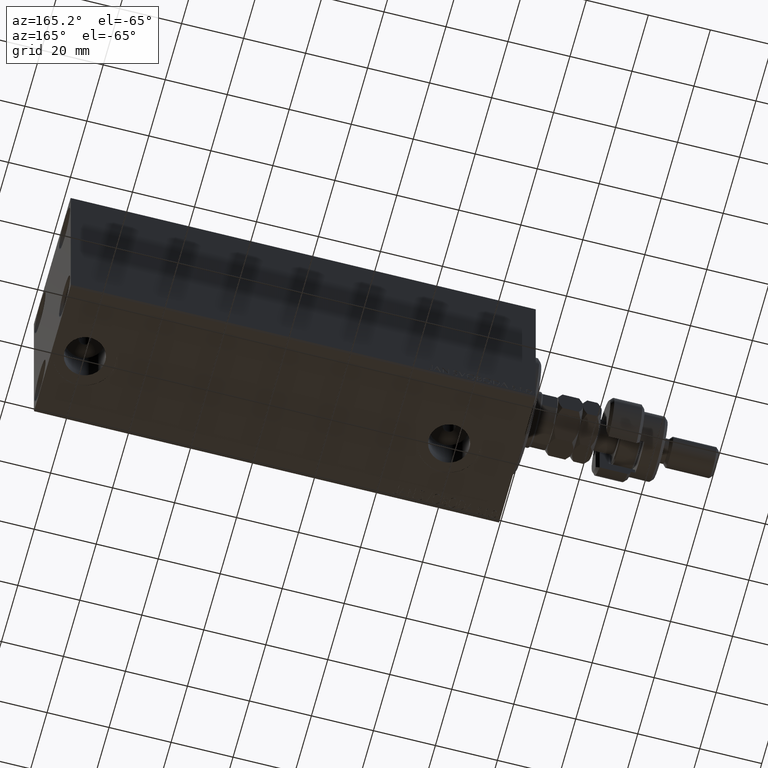
[diagram: clean part render]
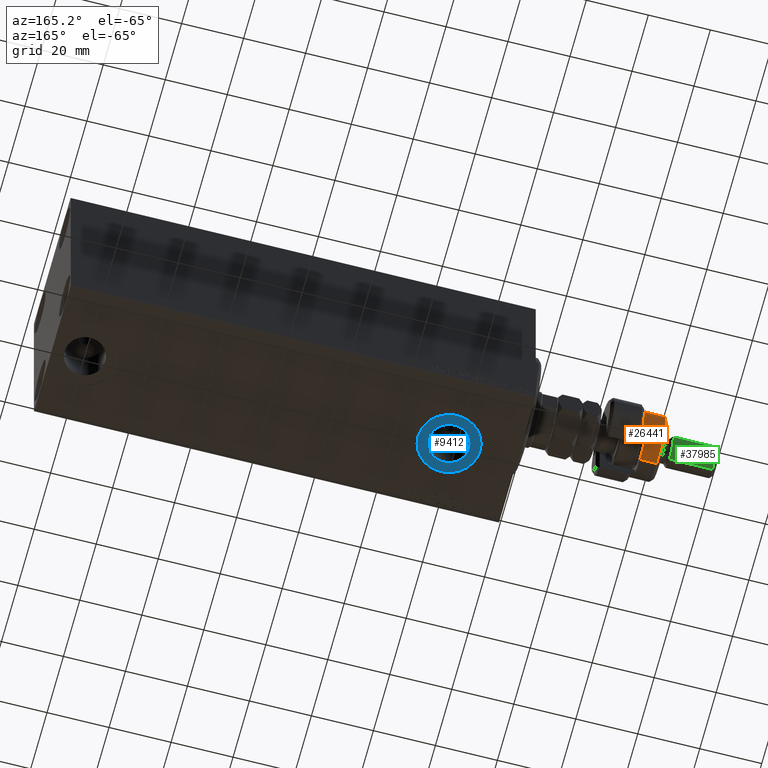
[diagram: same view with three faces highlighted in distinct colors, each labeled with its STEP entity id]
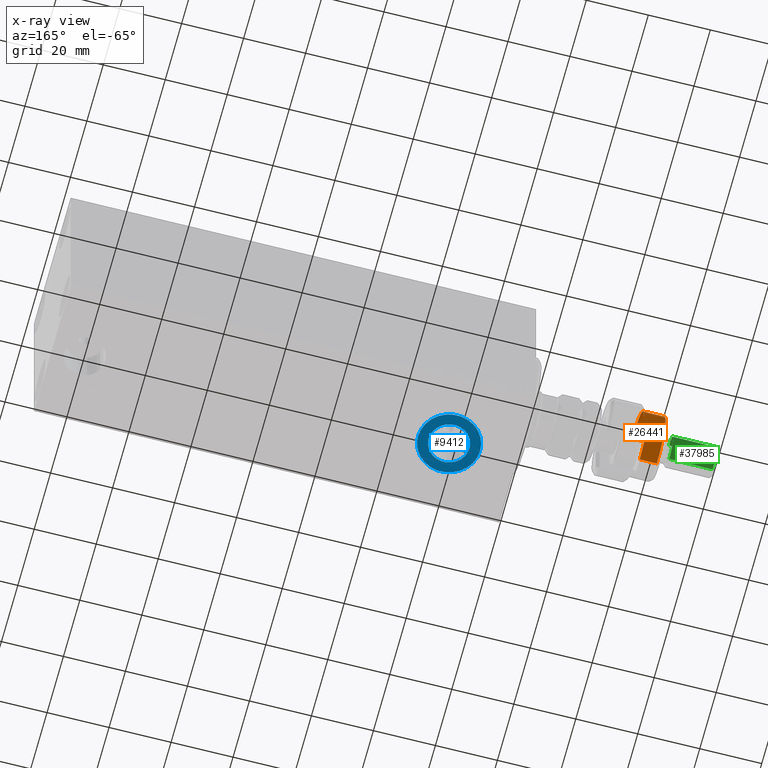
[diagram: x-ray of the same camera — body ghosted, the three highlighted faces saturated]
A machine part, auxiliary view with three faces highlighted in distinct colors.
The next image is the same camera in x-ray (body ghosted, the three faces saturated) — at least one of them is partly hidden behind the body in this view.
Their STEP definitions:

[orange] entity #26441 — the highlighted cylindrical surface (edge-blend (fillet) strip) has radius 10.5 mm, axis along (1, -0, -0).
#3172 = ORIENTED_EDGE ( 'NONE', *, *, #45183, .T. ) ;
#4069 = CYLINDRICAL_SURFACE ( 'NONE', #19640, 10.50000000000000000 ) ;
#4309 = DIRECTION ( 'NONE',  ( -1.000000000000000000, 0.000000000000000000, 0.000000000000000000 ) ) ;
#5009 = ORIENTED_EDGE ( 'NONE', *, *, #42270, .T. ) ;
#5487 = AXIS2_PLACEMENT_3D ( 'NONE', #9822, #38694, #22335 ) ;
#5669 = VERTEX_POINT ( 'NONE', #13661 ) ;
#6095 = CARTESIAN_POINT ( 'NONE',  ( 0.000000000000000000, 0.000000000000000000, 17.99999999999999645 ) ) ;
#6894 = VERTEX_POINT ( 'NONE', #42669 ) ;
#7407 = AXIS2_PLACEMENT_3D ( 'NONE', #23482, #16383, #19455 ) ;
#9822 = CARTESIAN_POINT ( 'NONE',  ( 0.000000000000000000, 0.000000000000000000, 11.00000000000000000 ) ) ;
#10167 = CARTESIAN_POINT ( 'NONE',  ( -10.50000000000000000, 0.000000000000000000, 17.99999999999999645 ) ) ;
#10226 = VERTEX_POINT ( 'NONE', #25324 ) ;
#13661 = CARTESIAN_POINT ( 'NONE',  ( -10.50000000000000000, 0.000000000000000000, 12.50000000000000000 ) ) ;
#14939 = LINE ( 'NONE', #22507, #30702 ) ;
#15634 = ORIENTED_EDGE ( 'NONE', *, *, #17913, .T. ) ;
#16383 = DIRECTION ( 'NONE',  ( 0.000000000000000000, 0.000000000000000000, -1.000000000000000000 ) ) ;
#16784 = VERTEX_POINT ( 'NONE', #41274 ) ;
#17124 = VERTEX_POINT ( 'NONE', #10167 ) ;
#17913 = EDGE_CURVE ( 'NONE', #24970, #16784, #14939, .T. ) ;
#17938 = ORIENTED_EDGE ( 'NONE', *, *, #43758, .T. ) ;
#18133 = CARTESIAN_POINT ( 'NONE',  ( -8.944271909999159220, 5.500000000000000000, 19.00000000000000000 ) ) ;
#18245 = CIRCLE ( 'NONE', #25813, 10.50000000000000000 ) ;
#18374 = DIRECTION ( 'NONE',  ( 0.000000000000000000, 0.000000000000000000, 1.000000000000000000 ) ) ;
#18954 = DIRECTION ( 'NONE',  ( -0.000000000000000000, -0.000000000000000000, -1.000000000000000000 ) ) ;
#19455 = DIRECTION ( 'NONE',  ( -1.000000000000000000, 0.000000000000000000, 0.000000000000000000 ) ) ;
#19640 = AXIS2_PLACEMENT_3D ( 'NONE', #36717, #32699, #4309 ) ;
#20404 = EDGE_LOOP ( 'NONE', ( #17938, #15634, #3172, #5009, #32613, #44353 ) ) ;
#20970 = CIRCLE ( 'NONE', #7407, 10.50000000000000000 ) ;
#22335 = DIRECTION ( 'NONE',  ( 1.000000000000000000, 0.000000000000000000, 0.000000000000000000 ) ) ;
#22507 = CARTESIAN_POINT ( 'NONE',  ( 10.50000000000000000, 1.285879139104720831E-15, 19.00000000000000000 ) ) ;
#22749 = EDGE_CURVE ( 'NONE', #5669, #10226, #20970, .T. ) ;
#23482 = CARTESIAN_POINT ( 'NONE',  ( 0.000000000000000000, 0.000000000000000000, 12.50000000000000000 ) ) ;
#24221 = VECTOR ( 'NONE', #18374, 1000.000000000000000 ) ;
#24890 = LINE ( 'NONE', #31146, #43844 ) ;
#24970 = VERTEX_POINT ( 'NONE', #39391 ) ;
#25324 = CARTESIAN_POINT ( 'NONE',  ( -8.944271909999159220, 5.500000000000000000, 12.50000000000000000 ) ) ;
#25813 = AXIS2_PLACEMENT_3D ( 'NONE', #6095, #44708, #38060 ) ;
#26441 = ADVANCED_FACE ( 'NONE', ( #39817 ), #4069, .T. ) ;
#30414 = CIRCLE ( 'NONE', #5487, 10.50000000000000000 ) ;
#30702 = VECTOR ( 'NONE', #18954, 1000.000000000000000 ) ;
#31146 = CARTESIAN_POINT ( 'NONE',  ( -10.50000000000000000, 0.000000000000000000, 19.00000000000000000 ) ) ;
#32469 = DIRECTION ( 'NONE',  ( -0.000000000000000000, -0.000000000000000000, -1.000000000000000000 ) ) ;
#32613 = ORIENTED_EDGE ( 'NONE', *, *, #22749, .F. ) ;
#32699 = DIRECTION ( 'NONE',  ( -0.000000000000000000, -0.000000000000000000, -1.000000000000000000 ) ) ;
#36717 = CARTESIAN_POINT ( 'NONE',  ( 0.000000000000000000, 0.000000000000000000, 19.00000000000000000 ) ) ;
#38060 = DIRECTION ( 'NONE',  ( 1.000000000000000000, 0.000000000000000000, 0.000000000000000000 ) ) ;
#38694 = DIRECTION ( 'NONE',  ( 0.000000000000000000, 0.000000000000000000, 1.000000000000000000 ) ) ;
#38793 = EDGE_CURVE ( 'NONE', #17124, #5669, #24890, .T. ) ;
#39391 = CARTESIAN_POINT ( 'NONE',  ( 10.50000000000000000, 1.285879139104720831E-15, 17.99999999999999645 ) ) ;
#39817 = FACE_OUTER_BOUND ( 'NONE', #20404, .T. ) ;
#41274 = CARTESIAN_POINT ( 'NONE',  ( 10.50000000000000000, 1.285879139104720831E-15, 11.00000000000000000 ) ) ;
#42270 = EDGE_CURVE ( 'NONE', #6894, #10226, #46331, .T. ) ;
#42669 = CARTESIAN_POINT ( 'NONE',  ( -8.944271909999159220, 5.500000000000000000, 11.00000000000000000 ) ) ;
#43758 = EDGE_CURVE ( 'NONE', #17124, #24970, #18245, .T. ) ;
#43844 = VECTOR ( 'NONE', #32469, 1000.000000000000000 ) ;
#44353 = ORIENTED_EDGE ( 'NONE', *, *, #38793, .F. ) ;
#44708 = DIRECTION ( 'NONE',  ( 0.000000000000000000, 0.000000000000000000, -1.000000000000000000 ) ) ;
#45183 = EDGE_CURVE ( 'NONE', #16784, #6894, #30414, .T. ) ;
#46331 = LINE ( 'NONE', #18133, #24221 ) ;

[blue] entity #9412 — the highlighted planar face has unit normal (0, 0, -1).
#1416 = EDGE_LOOP ( 'NONE', ( #38151, #40853 ) ) ;
#1988 = CIRCLE ( 'NONE', #8040, 6.580000000000002736 ) ;
#3439 = AXIS2_PLACEMENT_3D ( 'NONE', #28485, #24700, #42470 ) ;
#3524 = CARTESIAN_POINT ( 'NONE',  ( 22.00000000000000000, -3.594347949397319039E-15, -32.40000000000000568 ) ) ;
#3551 = EDGE_CURVE ( 'NONE', #18999, #39383, #16773, .T. ) ;
#8040 = AXIS2_PLACEMENT_3D ( 'NONE', #3524, #15123, #10867 ) ;
#8125 = ORIENTED_EDGE ( 'NONE', *, *, #3551, .F. ) ;
#9412 = ADVANCED_FACE ( 'NONE', ( #41369, #20265 ), #38718, .T. ) ;
#9561 = CARTESIAN_POINT ( 'NONE',  ( 11.99999999999999822, -3.594347949397319039E-15, -32.40000000000000568 ) ) ;
#9847 = DIRECTION ( 'NONE',  ( -1.000000000000000000, 0.000000000000000000, -0.000000000000000000 ) ) ;
#10867 = DIRECTION ( 'NONE',  ( -1.000000000000000000, 0.000000000000000000, 0.000000000000000000 ) ) ;
#12275 = AXIS2_PLACEMENT_3D ( 'NONE', #32315, #20962, #24737 ) ;
#12676 = EDGE_CURVE ( 'NONE', #13529, #36904, #31387, .T. ) ;
#12949 = CARTESIAN_POINT ( 'NONE',  ( 0.000000000000000000, 0.000000000000000000, -32.40000000000000568 ) ) ;
#13529 = VERTEX_POINT ( 'NONE', #9561 ) ;
#15123 = DIRECTION ( 'NONE',  ( 0.000000000000000000, 0.000000000000000000, -1.000000000000000000 ) ) ;
#16773 = CIRCLE ( 'NONE', #12275, 6.580000000000002736 ) ;
#18055 = EDGE_CURVE ( 'NONE', #39383, #18999, #1988, .T. ) ;
#18444 = CARTESIAN_POINT ( 'NONE',  ( 32.00000000000000000, -2.369701150249966375E-15, -32.40000000000000568 ) ) ;
#18999 = VERTEX_POINT ( 'NONE', #32962 ) ;
#19936 = EDGE_LOOP ( 'NONE', ( #8125, #41714 ) ) ;
#20265 = FACE_OUTER_BOUND ( 'NONE', #1416, .T. ) ;
#20962 = DIRECTION ( 'NONE',  ( 0.000000000000000000, 0.000000000000000000, -1.000000000000000000 ) ) ;
#21321 = CARTESIAN_POINT ( 'NONE',  ( 22.00000000000000000, -3.594347949397319039E-15, -32.40000000000000568 ) ) ;
#24700 = DIRECTION ( 'NONE',  ( 0.000000000000000000, 0.000000000000000000, -1.000000000000000000 ) ) ;
#24737 = DIRECTION ( 'NONE',  ( -1.000000000000000000, 0.000000000000000000, 0.000000000000000000 ) ) ;
#25682 = AXIS2_PLACEMENT_3D ( 'NONE', #21321, #30032, #39557 ) ;
#28485 = CARTESIAN_POINT ( 'NONE',  ( 22.00000000000000000, -3.594347949397319039E-15, -32.40000000000000568 ) ) ;
#29043 = CARTESIAN_POINT ( 'NONE',  ( 28.58000000000000185, -2.788530355558360786E-15, -32.40000000000000568 ) ) ;
#30032 = DIRECTION ( 'NONE',  ( 0.000000000000000000, 0.000000000000000000, -1.000000000000000000 ) ) ;
#31387 = CIRCLE ( 'NONE', #3439, 10.00000000000000000 ) ;
#32315 = CARTESIAN_POINT ( 'NONE',  ( 22.00000000000000000, -3.594347949397319039E-15, -32.40000000000000568 ) ) ;
#32962 = CARTESIAN_POINT ( 'NONE',  ( 15.41999999999999638, -3.594347949397319039E-15, -32.40000000000000568 ) ) ;
#33612 = AXIS2_PLACEMENT_3D ( 'NONE', #12949, #42266, #9847 ) ;
#34757 = CIRCLE ( 'NONE', #25682, 10.00000000000000000 ) ;
#35233 = EDGE_CURVE ( 'NONE', #36904, #13529, #34757, .T. ) ;
#36904 = VERTEX_POINT ( 'NONE', #18444 ) ;
#38151 = ORIENTED_EDGE ( 'NONE', *, *, #12676, .T. ) ;
#38718 = PLANE ( 'NONE',  #33612 ) ;
#39383 = VERTEX_POINT ( 'NONE', #29043 ) ;
#39557 = DIRECTION ( 'NONE',  ( -1.000000000000000000, 0.000000000000000000, 0.000000000000000000 ) ) ;
#40853 = ORIENTED_EDGE ( 'NONE', *, *, #35233, .T. ) ;
#41369 = FACE_BOUND ( 'NONE', #19936, .T. ) ;
#41714 = ORIENTED_EDGE ( 'NONE', *, *, #18055, .F. ) ;
#42266 = DIRECTION ( 'NONE',  ( 0.000000000000000000, 0.000000000000000000, -1.000000000000000000 ) ) ;
#42470 = DIRECTION ( 'NONE',  ( -1.000000000000000000, 0.000000000000000000, 0.000000000000000000 ) ) ;

[green] entity #37985 — the highlighted cylindrical surface (edge-blend (fillet) strip) has radius 5 mm, axis along (1, -0, -0).
#3221 = LINE ( 'NONE', #17421, #34822 ) ;
#4599 = DIRECTION ( 'NONE',  ( -0.000000000000000000, -0.000000000000000000, -1.000000000000000000 ) ) ;
#4668 = CIRCLE ( 'NONE', #37165, 5.000000000000000888 ) ;
#4735 = DIRECTION ( 'NONE',  ( 1.000000000000000000, 0.000000000000000000, 0.000000000000000000 ) ) ;
#5345 = EDGE_CURVE ( 'NONE', #30279, #39430, #30157, .T. ) ;
#5470 = VERTEX_POINT ( 'NONE', #27744 ) ;
#6796 = VERTEX_POINT ( 'NONE', #46111 ) ;
#6877 = DIRECTION ( 'NONE',  ( 0.000000000000000000, 0.000000000000000000, -1.000000000000000000 ) ) ;
#7118 = CARTESIAN_POINT ( 'NONE',  ( 0.000000000000000000, 0.000000000000000000, 36.00000000000000711 ) ) ;
#7945 = EDGE_CURVE ( 'NONE', #5470, #39430, #8633, .T. ) ;
#8633 = CIRCLE ( 'NONE', #27488, 5.000000000000000888 ) ;
#10199 = DIRECTION ( 'NONE',  ( -1.000000000000000000, 0.000000000000000000, 0.000000000000000000 ) ) ;
#14432 = DIRECTION ( 'NONE',  ( 1.000000000000000000, 0.000000000000000000, 0.000000000000000000 ) ) ;
#17057 = CYLINDRICAL_SURFACE ( 'NONE', #32437, 5.000000000000000888 ) ;
#17421 = CARTESIAN_POINT ( 'NONE',  ( 5.000000000000000888, 6.123233995736767268E-16, 37.00000000000000000 ) ) ;
#20845 = CARTESIAN_POINT ( 'NONE',  ( 0.000000000000000000, 0.000000000000000000, 37.00000000000000000 ) ) ;
#27287 = ORIENTED_EDGE ( 'NONE', *, *, #41534, .T. ) ;
#27488 = AXIS2_PLACEMENT_3D ( 'NONE', #44019, #44259, #4735 ) ;
#27744 = CARTESIAN_POINT ( 'NONE',  ( 5.000000000000000888, 6.123233995736767268E-16, 21.99999999999999289 ) ) ;
#27947 = DIRECTION ( 'NONE',  ( -0.000000000000000000, -0.000000000000000000, -1.000000000000000000 ) ) ;
#28418 = ORIENTED_EDGE ( 'NONE', *, *, #7945, .T. ) ;
#29748 = EDGE_CURVE ( 'NONE', #30279, #6796, #4668, .T. ) ;
#30157 = LINE ( 'NONE', #33940, #34264 ) ;
#30279 = VERTEX_POINT ( 'NONE', #34732 ) ;
#31863 = DIRECTION ( 'NONE',  ( -0.000000000000000000, -0.000000000000000000, -1.000000000000000000 ) ) ;
#31944 = EDGE_LOOP ( 'NONE', ( #37665, #27287, #28418, #45839 ) ) ;
#32437 = AXIS2_PLACEMENT_3D ( 'NONE', #20845, #27947, #10199 ) ;
#32829 = CARTESIAN_POINT ( 'NONE',  ( -5.000000000000000888, 0.000000000000000000, 21.99999999999999289 ) ) ;
#33940 = CARTESIAN_POINT ( 'NONE',  ( -5.000000000000000888, 0.000000000000000000, 37.00000000000000000 ) ) ;
#34264 = VECTOR ( 'NONE', #4599, 1000.000000000000000 ) ;
#34732 = CARTESIAN_POINT ( 'NONE',  ( -5.000000000000000888, 0.000000000000000000, 36.00000000000000711 ) ) ;
#34822 = VECTOR ( 'NONE', #31863, 1000.000000000000000 ) ;
#35745 = FACE_OUTER_BOUND ( 'NONE', #31944, .T. ) ;
#37165 = AXIS2_PLACEMENT_3D ( 'NONE', #7118, #6877, #14432 ) ;
#37665 = ORIENTED_EDGE ( 'NONE', *, *, #29748, .T. ) ;
#37985 = ADVANCED_FACE ( 'NONE', ( #35745 ), #17057, .T. ) ;
#39430 = VERTEX_POINT ( 'NONE', #32829 ) ;
#41534 = EDGE_CURVE ( 'NONE', #6796, #5470, #3221, .T. ) ;
#44019 = CARTESIAN_POINT ( 'NONE',  ( 0.000000000000000000, 0.000000000000000000, 21.99999999999999289 ) ) ;
#44259 = DIRECTION ( 'NONE',  ( -0.000000000000000000, -0.000000000000000000, 1.000000000000000000 ) ) ;
#45839 = ORIENTED_EDGE ( 'NONE', *, *, #5345, .F. ) ;
#46111 = CARTESIAN_POINT ( 'NONE',  ( 5.000000000000000888, 6.123233995736767268E-16, 36.00000000000000711 ) ) ;